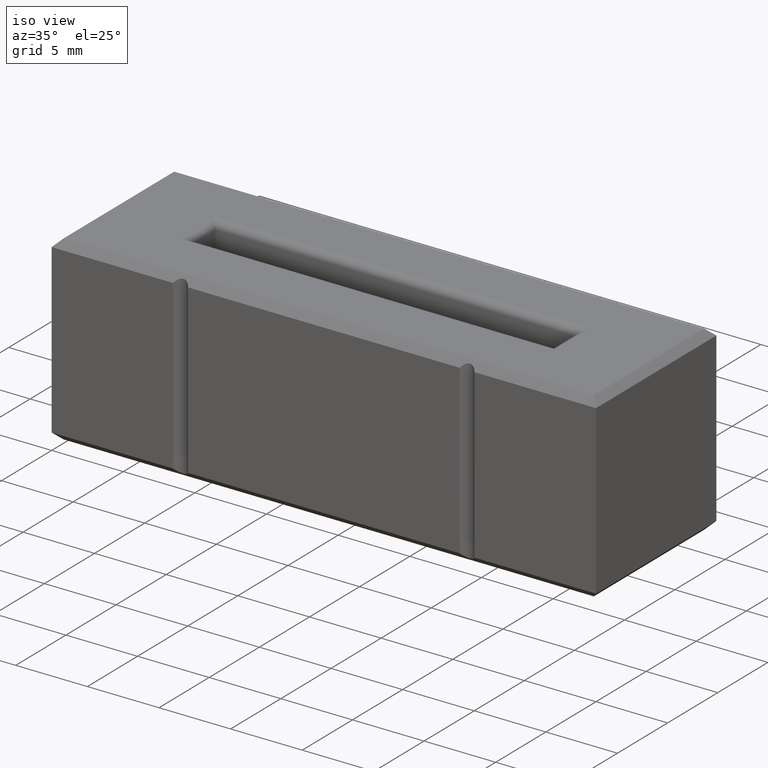
[diagram: clean part render]
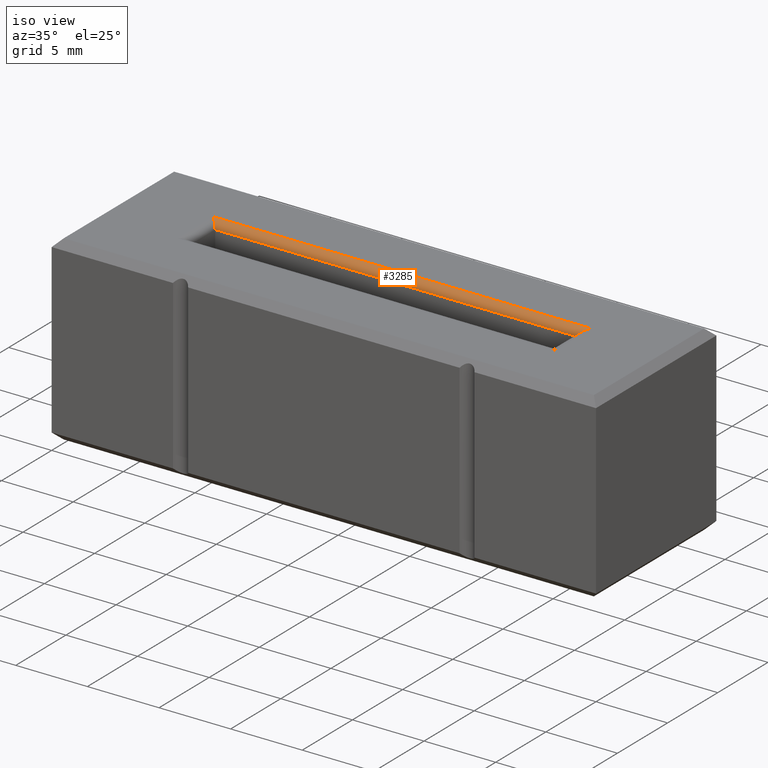
[diagram: same view with one face highlighted and labeled with its STEP entity id]
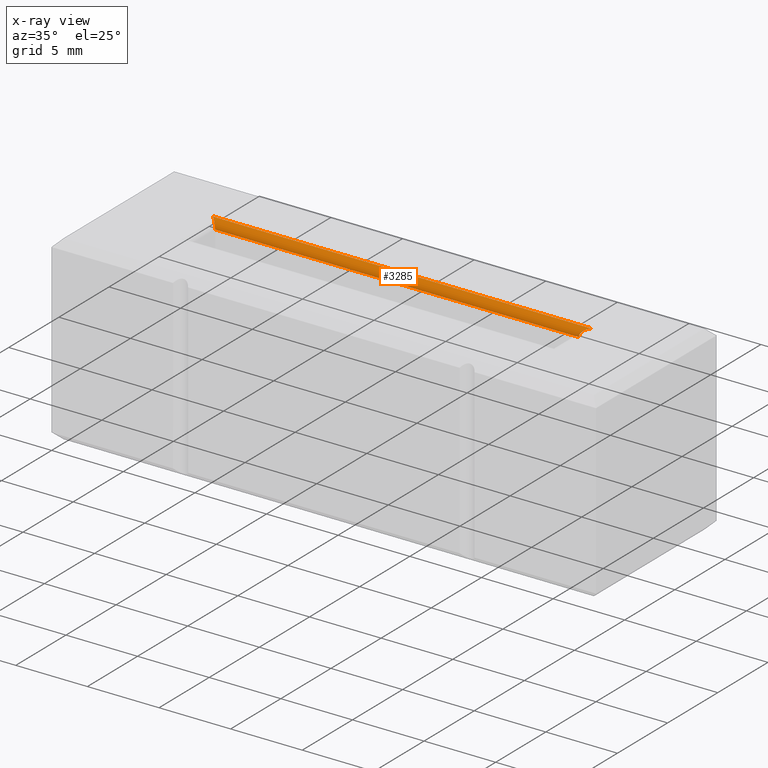
[diagram: x-ray of the same camera — body ghosted, the highlighted face saturated]
A machine part, iso view. The second image highlights one B-rep face of the part: STEP entity #3285.
The next image is the same camera in x-ray: the body ghosted, the highlighted face saturated — about 0% of this face is hidden behind the body in this view.
In plain terms, the highlighted cylindrical surface (edge-blend (fillet) strip) has radius 0.5 mm, axis along (1, -0, 0).
Its self-contained STEP definition (entity closure, byte-faithful):
#115 = ORIENTED_EDGE ( 'NONE', *, *, #480, .F. ) ;
#139 = ORIENTED_EDGE ( 'NONE', *, *, #2871, .F. ) ;
#187 = CARTESIAN_POINT ( 'NONE',  ( 6.299999999999993605, 7.300000000000009592, 12.19999999999999929 ) ) ;
#209 = LINE ( 'NONE', #1416, #826 ) ;
#343 = VERTEX_POINT ( 'NONE', #187 ) ;
#422 = CARTESIAN_POINT ( 'NONE',  ( 6.092893218813444811, 7.507106781186556610, 12.70000000000000107 ) ) ;
#480 = EDGE_CURVE ( 'NONE', #827, #343, #3274, .T. ) ;
#674 = EDGE_CURVE ( 'NONE', #3063, #343, #2075, .T. ) ;
#701 = CARTESIAN_POINT ( 'NONE',  ( 31.90710678118654897, 7.507106781186554834, 12.70000000000000107 ) ) ;
#826 = VECTOR ( 'NONE', #3164, 1000.000000000000000 ) ;
#827 = VERTEX_POINT ( 'NONE', #1340 ) ;
#874 = FACE_OUTER_BOUND ( 'NONE', #2558, .T. ) ;
#1080 = CARTESIAN_POINT ( 'NONE',  ( 5.799999999999993605, 7.800000000000010481, 12.69999999999999929 ) ) ;
#1340 = CARTESIAN_POINT ( 'NONE',  ( 31.70000000000000639, 7.300000000000006040, 12.19999999999999929 ) ) ;
#1416 = CARTESIAN_POINT ( 'NONE',  ( 31.70000000000000639, 7.800000000000006928, 12.69999999999999929 ) ) ;
#1515 = DIRECTION ( 'NONE',  ( 1.000000000000000000, -1.365923996832130870E-16, 0.000000000000000000 ) ) ;
#1689 = EDGE_CURVE ( 'NONE', #3063, #2765, #209, .T. ) ;
#1709 = DIRECTION ( 'NONE',  ( 0.000000000000000000, 1.000000000000000000, 0.000000000000000000 ) ) ;
#1717 = CARTESIAN_POINT ( 'NONE',  ( 31.70000000000000639, 7.300000000000006040, 12.19999999999999929 ) ) ;
#1735 = CARTESIAN_POINT ( 'NONE',  ( 6.299999999999993605, 7.300000000000009592, 12.19999999999999929 ) ) ;
#1915 = ORIENTED_EDGE ( 'NONE', *, *, #674, .T. ) ;
#1925 = CARTESIAN_POINT ( 'NONE',  ( 5.799999999999993605, 7.800000000000010481, 12.69999999999999929 ) ) ;
#1969 = CARTESIAN_POINT ( 'NONE',  ( 32.20000000000000284, 7.800000000000006928, 12.69999999999999929 ) ) ;
#2000 = CARTESIAN_POINT ( 'NONE',  ( 32.20000000000000284, 7.800000000000006928, 12.69999999999999929 ) ) ;
#2034 = CARTESIAN_POINT ( 'NONE',  ( 6.299999999999993605, 7.800000000000010481, 12.19999999999999929 ) ) ;
#2075 =( BOUNDED_CURVE ( )  B_SPLINE_CURVE ( 3, ( #1925, #422, #3249, #2216 ),
 .UNSPECIFIED., .F., .F. ) 
 B_SPLINE_CURVE_WITH_KNOTS ( ( 4, 4 ),
 ( 1.570796326794896558, 3.141592653589793116 ),
 .UNSPECIFIED. ) 
 CURVE ( )  GEOMETRIC_REPRESENTATION_ITEM ( )  RATIONAL_B_SPLINE_CURVE ( ( 1.000000000000000000, 0.8047378541243649375, 0.8047378541243649375, 1.000000000000000000 ) ) 
 REPRESENTATION_ITEM ( '' )  );
#2216 = CARTESIAN_POINT ( 'NONE',  ( 6.299999999999993605, 7.300000000000009592, 12.19999999999999929 ) ) ;
#2317 = AXIS2_PLACEMENT_3D ( 'NONE', #2034, #1515, #1709 ) ;
#2501 =( BOUNDED_CURVE ( )  B_SPLINE_CURVE ( 3, ( #1969, #701, #3003, #1717 ),
 .UNSPECIFIED., .F., .T. ) 
 B_SPLINE_CURVE_WITH_KNOTS ( ( 4, 4 ),
 ( 4.712388980384689674, 6.283185307179586232 ),
 .UNSPECIFIED. ) 
 CURVE ( )  GEOMETRIC_REPRESENTATION_ITEM ( )  RATIONAL_B_SPLINE_CURVE ( ( 1.000000000000000000, 0.8047378541243649375, 0.8047378541243649375, 1.000000000000000000 ) ) 
 REPRESENTATION_ITEM ( '' )  );
#2558 = EDGE_LOOP ( 'NONE', ( #1915, #115, #139, #2956 ) ) ;
#2765 = VERTEX_POINT ( 'NONE', #2000 ) ;
#2789 = DIRECTION ( 'NONE',  ( -1.000000000000000000, 1.365923996832130870E-16, 0.000000000000000000 ) ) ;
#2871 = EDGE_CURVE ( 'NONE', #2765, #827, #2501, .T. ) ;
#2956 = ORIENTED_EDGE ( 'NONE', *, *, #1689, .F. ) ;
#3003 = CARTESIAN_POINT ( 'NONE',  ( 31.70000000000000639, 7.300000000000006928, 12.49289321881345138 ) ) ;
#3063 = VERTEX_POINT ( 'NONE', #1080 ) ;
#3151 = VECTOR ( 'NONE', #2789, 1000.000000000000000 ) ;
#3164 = DIRECTION ( 'NONE',  ( 1.000000000000000000, -1.365923996832130870E-16, -0.000000000000000000 ) ) ;
#3194 = CYLINDRICAL_SURFACE ( 'NONE', #2317, 0.5000000000000004441 ) ;
#3249 = CARTESIAN_POINT ( 'NONE',  ( 6.299999999999993605, 7.300000000000008704, 12.49289321881345138 ) ) ;
#3274 = LINE ( 'NONE', #1735, #3151 ) ;
#3285 = ADVANCED_FACE ( 'NONE', ( #874 ), #3194, .T. ) ;